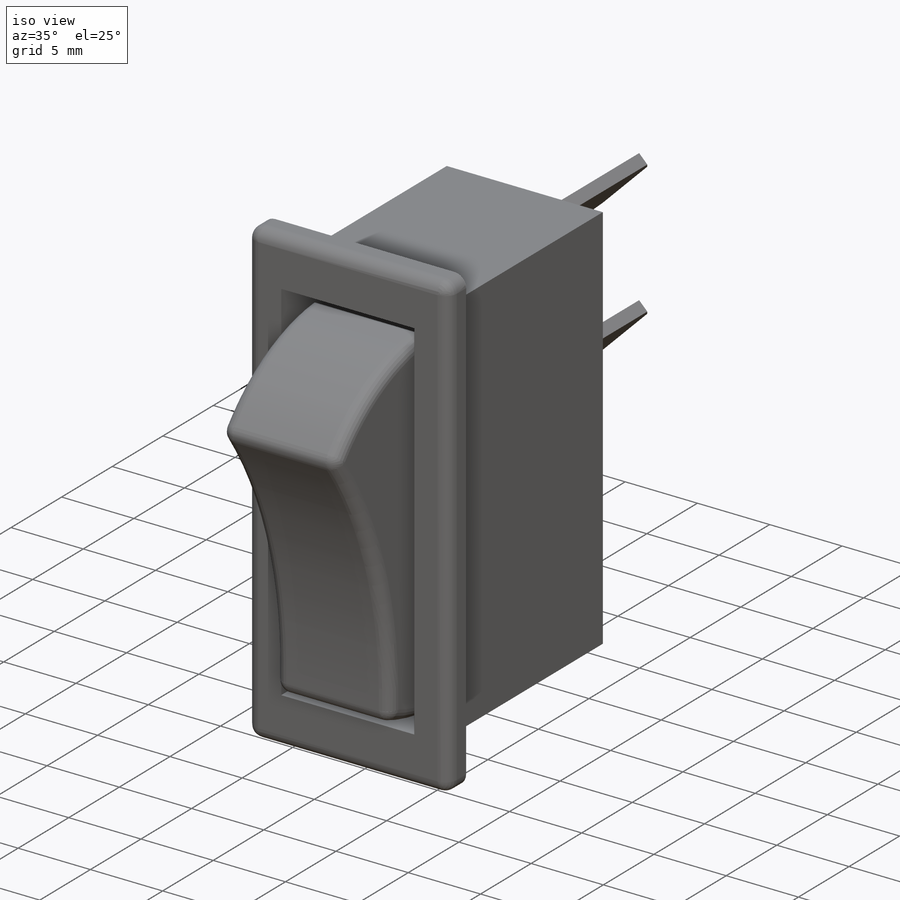
[diagram: iso view]
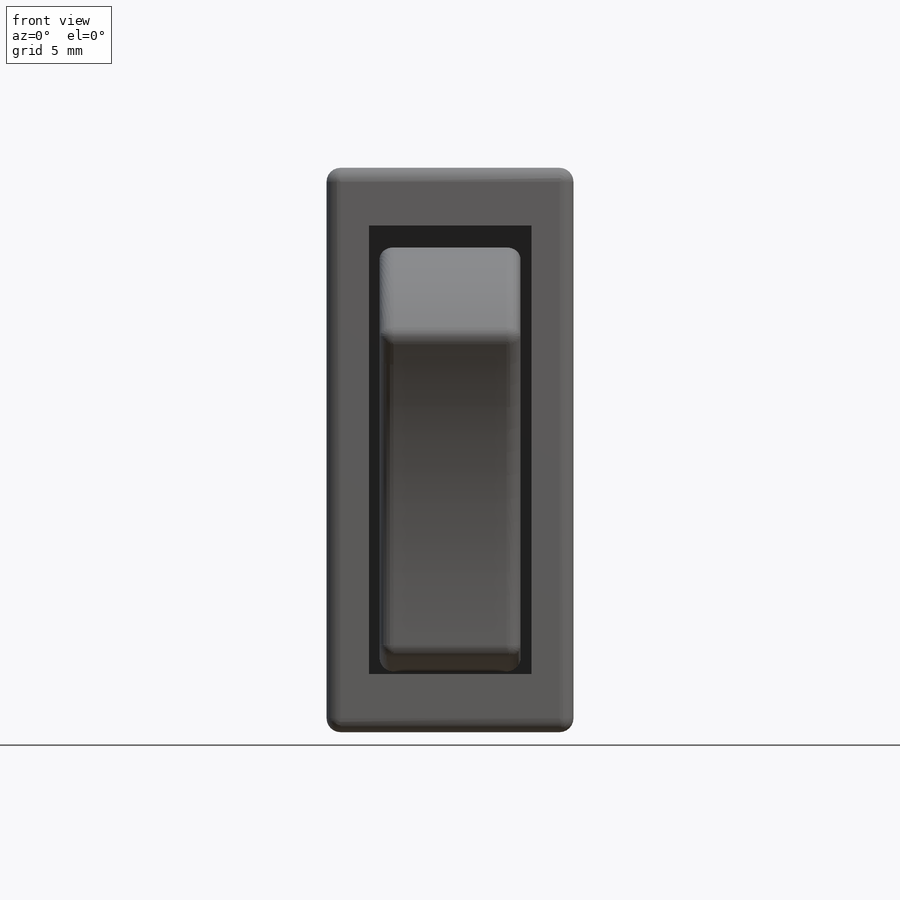
[diagram: front view]
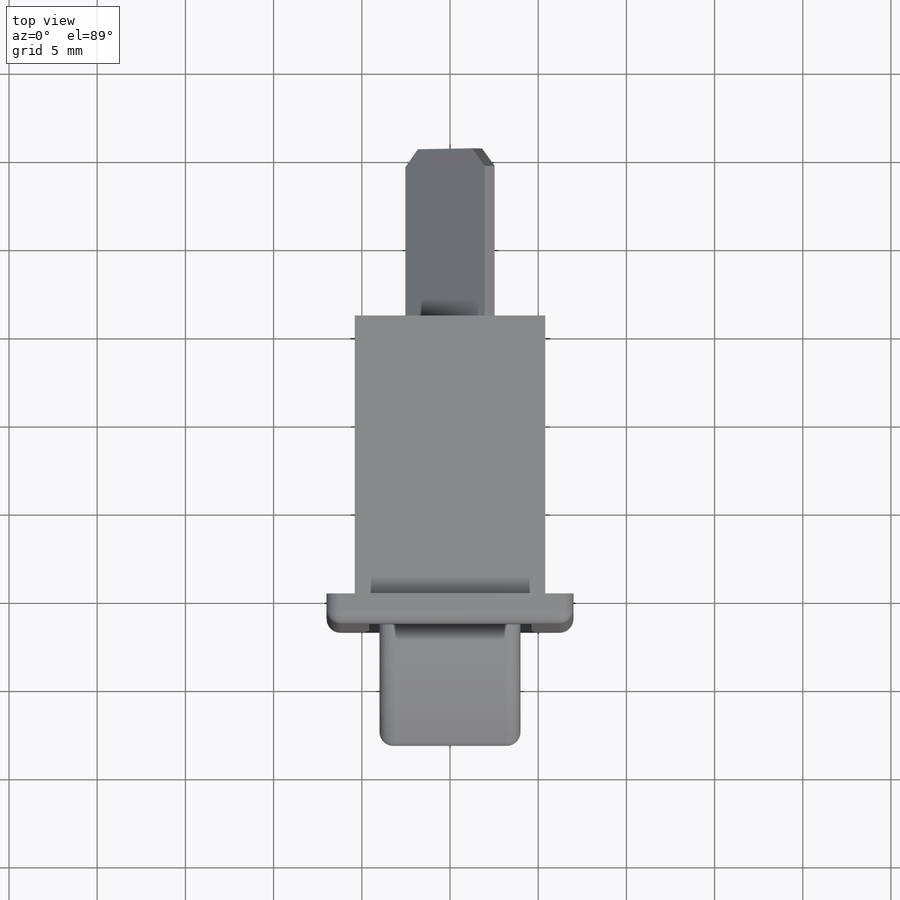
[diagram: top view]
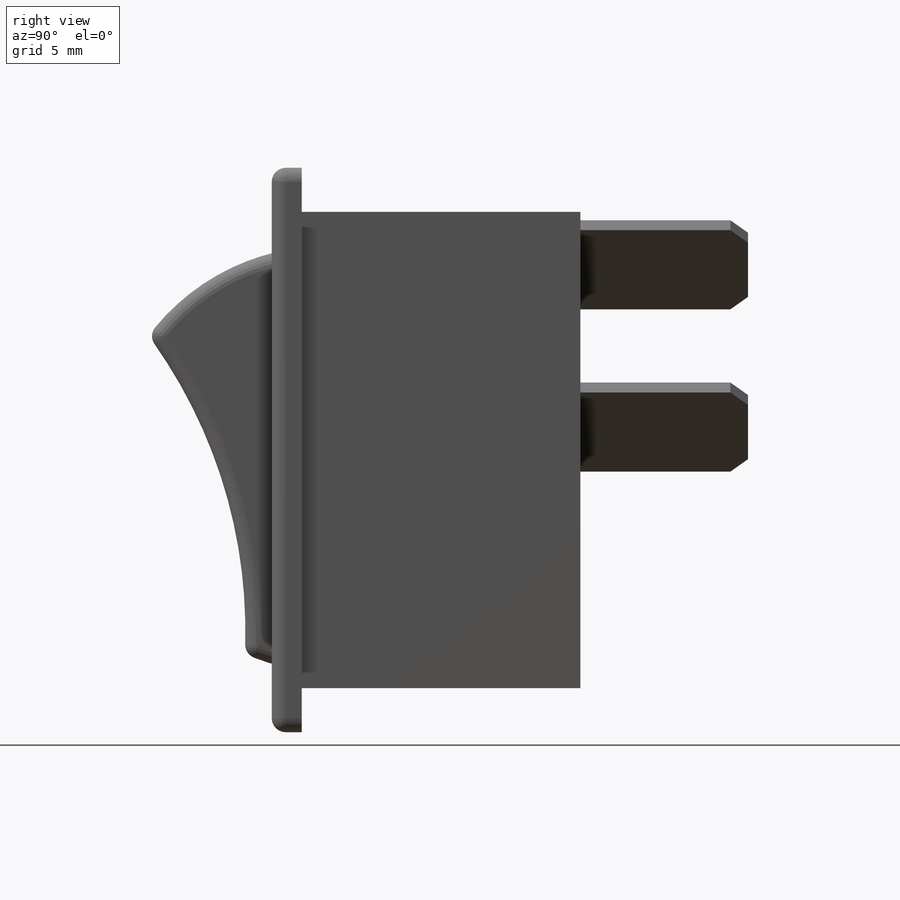
[diagram: right view]
SOLIDWORKS PART (.sldprt)
format: sldprt  version: not decoded by parser v0  size: 351,744 bytes
history: native  units: mm
features: sketch x5, extrude x4, fillet x2, material x1, cut_extrude x1, chamfer x1 (+11 scaffold rows collapsed)
feature tree (25):
  scaffold x11  (default folders/planes/origin — collapsed)
  material  "ABS"
  sketch  "Sketch1"  dims[D1=10.8mm D2=27.0mm D3=~6.699873mm]
  extrude  "main body"  Depth=15.8mm
  sketch  "Sketch2"  dims[D1=0.0mm D2=~0.79375mm]
  cut_extrude  "main body light"  Depth=2mm
  sketch  "Sketch3"  dims[c1.D1=14.0mm c1.D2=32.0mm c1.D3=3.0mm c1.D4=2.0mm c1.D5=2.0mm c2.D3=2.75mm]
  extrude  "flange"  Depth=1.7mm
  sketch  "Sketch4"  dims[c1.D1=~28.259996mm c1.D6=12.7mm c1.D7=~3.262289mm c1.D8=3.175mm c2.D1=15.875mm c2.D2=6.985mm c2.D3=9.525mm c2.D4=1.524mm c2.D5=4.445mm c2.D7=4.1148mm c2.D9=10.0mm c2.D10=~12.90686mm c3.D10=~167.331949deg c3.D11=~12.940051mm c3.D9=10.0mm]
  extrude  "switch body and profile"  Depth=8mm
  fillet  "Fillet1"  Radius=0.79375mm
  fillet  "Fillet2"  Radius=0.79375mm
  sketch  "Sketch5"  dims[c1.D1=6.35mm c1.D2=0.8mm c1.D3=2.032mm c1.D4=10.5mm c2.D3=0.4mm c2.D4=10.5mm c2.D1=9.2mm c2.D2=0.8mm c3.D3=6.35mm c3.D4=10.5mm c4.D4=45.0deg c4.D5=3.0mm]
  extrude  "Extrude5"  Depth=9.5mm
  chamfer  "Chamfer1"  Distance=1mm Angle=45deg
decode coverage: 13 of 13 modeling features carry decoded parameters
note: ~ marks probable driven/reference dimensions
note: suppression state not decoded; provenance and decode notes live in map.json
